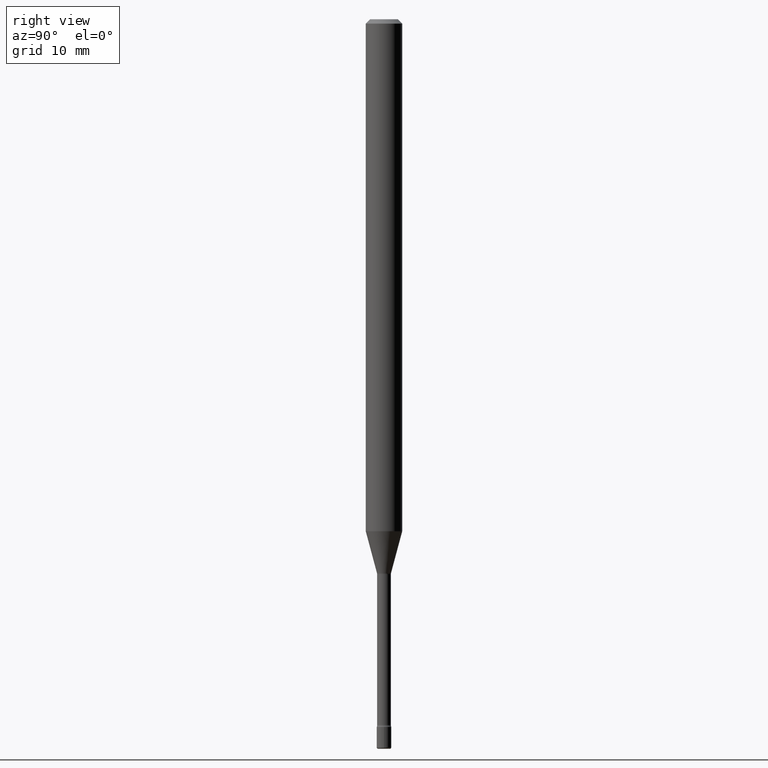
[diagram: clean part render]
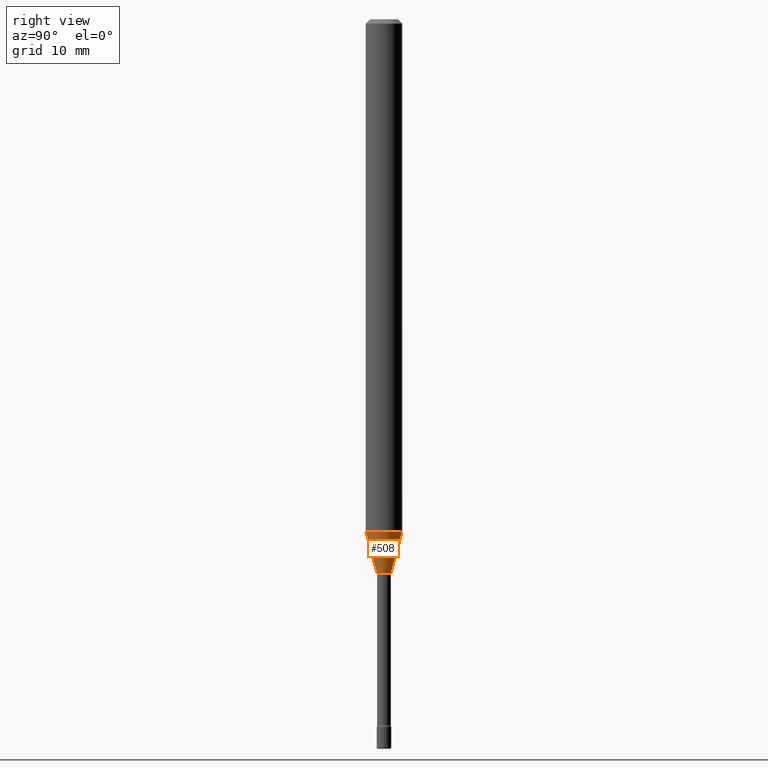
[diagram: same view with one face highlighted and labeled with its STEP entity id]
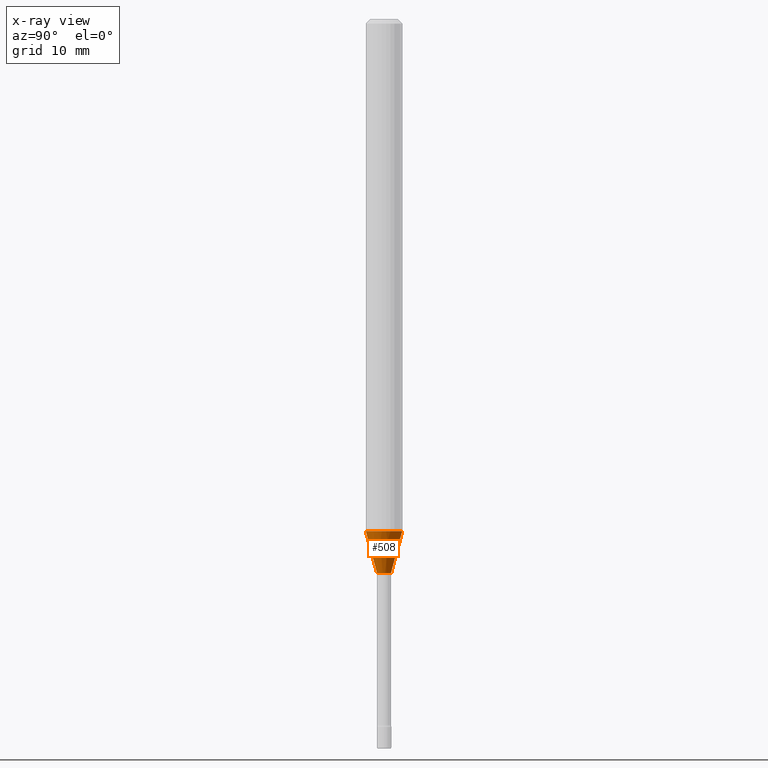
[diagram: x-ray of the same camera — body ghosted, the highlighted face saturated]
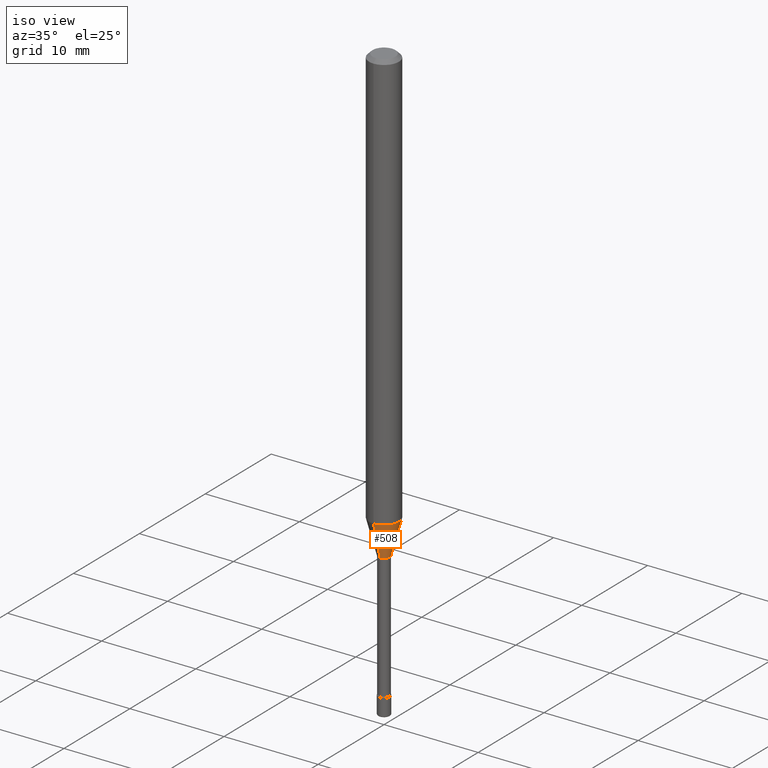
[diagram: same view with one face highlighted and labeled with its STEP entity id]
A machine part, right view. The second image highlights one B-rep face of the part: STEP entity #508.
The next image is the same camera in x-ray: the body ghosted, the highlighted face saturated — about 0% of this face is hidden behind the body in this view.
A second angle (iso view) of the same face is appended — the face is thin or edge-on in the first view.
In plain terms, the highlighted conical surface has half-angle 15 deg.
Its self-contained STEP definition (entity closure, byte-faithful):
#16 = VECTOR ( 'NONE', #331, 39.37007874015748143 ) ;
#19 = DIRECTION ( 'NONE',  ( -2.445403387377062590E-29, 3.491575022299714860E-15, 1.000000000000000000 ) ) ;
#36 = ORIENTED_EDGE ( 'NONE', *, *, #475, .F. ) ;
#38 = EDGE_LOOP ( 'NONE', ( #379, #44, #90, #36 ) ) ;
#39 = CARTESIAN_POINT ( 'NONE',  ( 1.706092163947695036E-16, 0.02401111260565735178, -1.898092501787273401 ) ) ;
#44 = ORIENTED_EDGE ( 'NONE', *, *, #410, .T. ) ;
#56 = AXIS2_PLACEMENT_3D ( 'NONE', #426, #266, #263 ) ;
#58 = EDGE_CURVE ( 'NONE', #523, #86, #293, .T. ) ;
#85 = FACE_OUTER_BOUND ( 'NONE', #38, .T. ) ;
#86 = VERTEX_POINT ( 'NONE', #199 ) ;
#90 = ORIENTED_EDGE ( 'NONE', *, *, #58, .F. ) ;
#98 = AXIS2_PLACEMENT_3D ( 'NONE', #450, #19, #205 ) ;
#113 = AXIS2_PLACEMENT_3D ( 'NONE', #541, #370, #544 ) ;
#199 = CARTESIAN_POINT ( 'NONE',  ( 4.440892098501052147E-16, 0.06249999999999384520, -1.754450018504814857 ) ) ;
#205 = DIRECTION ( 'NONE',  ( -6.982962677686265922E-15, -1.000000000000000000, 4.370956789862821150E-15 ) ) ;
#256 = LINE ( 'NONE', #419, #547 ) ;
#263 = DIRECTION ( 'NONE',  ( -6.982962677686265133E-15, -1.000000000000000000, 0.000000000000000000 ) ) ;
#266 = DIRECTION ( 'NONE',  ( -2.445403387377062590E-29, 3.491575022299714860E-15, 1.000000000000000000 ) ) ;
#271 = LINE ( 'NONE', #39, #16 ) ;
#293 = CIRCLE ( 'NONE', #98, 0.06250000000000000000 ) ;
#308 = CARTESIAN_POINT ( 'NONE',  ( -4.364351673553489230E-16, -0.06250000000000614786, -1.754450018504814190 ) ) ;
#331 = DIRECTION ( 'NONE',  ( 1.839019923739601104E-15, 0.2588190451025250693, 0.9659258262890670910 ) ) ;
#337 = DIRECTION ( 'NONE',  ( -1.807323732225330928E-15, -0.2588190451025182970, 0.9659258262890689783 ) ) ;
#370 = DIRECTION ( 'NONE',  ( -2.445403387377062590E-29, 3.491575022299714860E-15, 1.000000000000000000 ) ) ;
#379 = ORIENTED_EDGE ( 'NONE', *, *, #448, .T. ) ;
#410 = EDGE_CURVE ( 'NONE', #476, #86, #271, .T. ) ;
#419 = CARTESIAN_POINT ( 'NONE',  ( -1.676687031750273969E-16, -0.02401111260567060854, -1.898092501787273401 ) ) ;
#426 = CARTESIAN_POINT ( 'NONE',  ( 4.641601833425601729E-29, -6.627332369254820611E-15, -1.898092501787273401 ) ) ;
#437 = CONICAL_SURFACE ( 'NONE', #56, 0.02401111260566398189, 0.2617993877991502960 ) ;
#448 = EDGE_CURVE ( 'NONE', #522, #476, #469, .T. ) ;
#450 = CARTESIAN_POINT ( 'NONE',  ( 4.290338018235424187E-29, -6.125793862484683661E-15, -1.754450018504814635 ) ) ;
#469 = CIRCLE ( 'NONE', #113, 0.02401111260566398189 ) ;
#475 = EDGE_CURVE ( 'NONE', #522, #523, #256, .T. ) ;
#476 = VERTEX_POINT ( 'NONE', #510 ) ;
#508 = ADVANCED_FACE ( 'NONE', ( #85 ), #437, .T. ) ;
#510 = CARTESIAN_POINT ( 'NONE',  ( 3.073492131224375317E-16, 0.02401111260565734831, -1.898092501787273401 ) ) ;
#522 = VERTEX_POINT ( 'NONE', #562 ) ;
#523 = VERTEX_POINT ( 'NONE', #308 ) ;
#541 = CARTESIAN_POINT ( 'NONE',  ( 4.641601833425601729E-29, -6.627332369254820611E-15, -1.898092501787273401 ) ) ;
#544 = DIRECTION ( 'NONE',  ( -6.982962677686265133E-15, -1.000000000000000000, 0.000000000000000000 ) ) ;
#547 = VECTOR ( 'NONE', #337, 39.37007874015748143 ) ;
#562 = CARTESIAN_POINT ( 'NONE',  ( -1.676687031750273969E-16, -0.02401111260567060854, -1.898092501787273401 ) ) ;